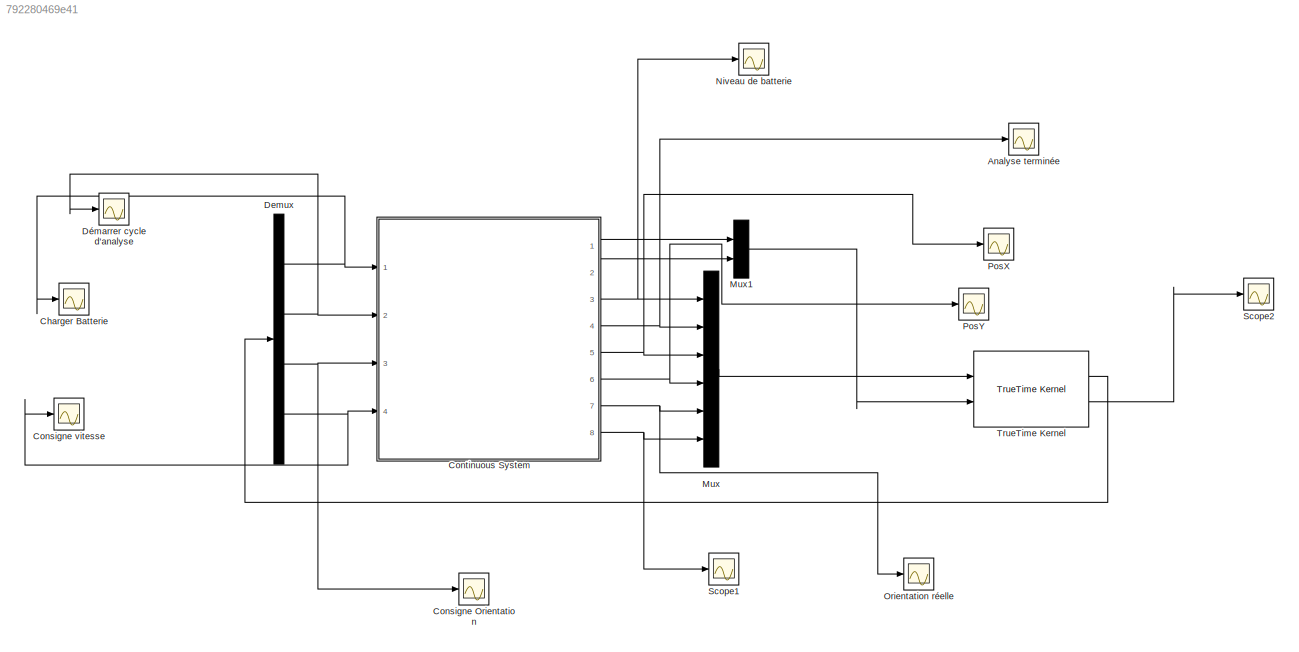
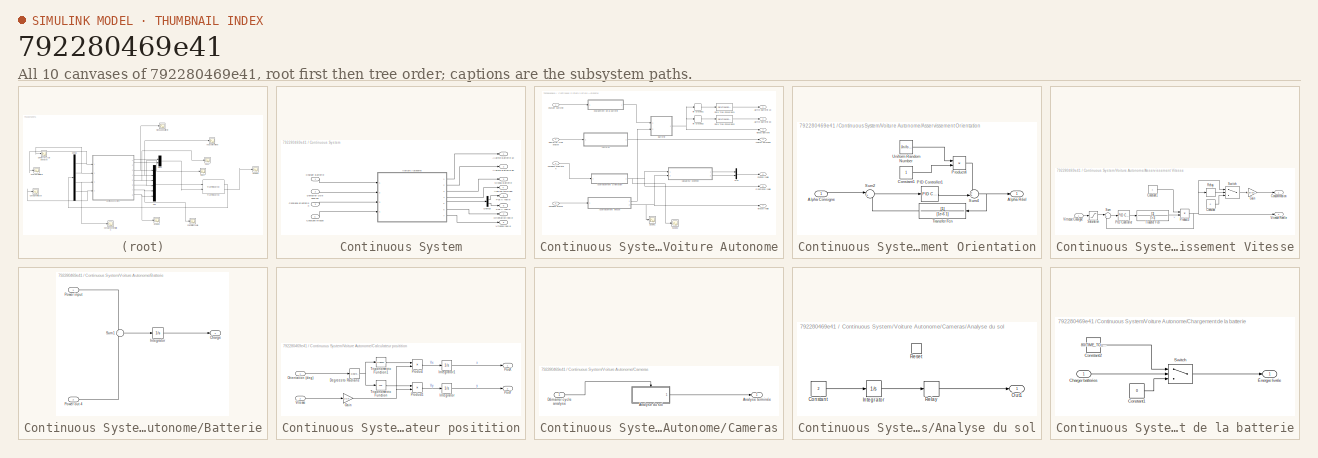
[diagram: thumbnail index - all 10 canvases of the model, root first then tree order]
MODEL slx_792280469e41
KIND model
CONFIG AbsTol = auto
CONFIG EnableMultiTasking = off
CONFIG FixedStep = auto
CONFIG MaxStep = auto
CONFIG MinStep = auto
CONFIG RelTol = 1e-3
CONFIG SampleTimeConstraint = Unconstrained
CONFIG Solver = VariableStepAuto
CONFIG SolverName = VariableStepAuto
CONFIG StartTime = 0.0
CONFIG StopTime = 86400
BLOCK [Scope] Analyse terminée
  Floating = off
  NumInputPorts = 1
  Ports = [1]
  ScopeSpecificationString = Simulink.scopes.TimeScopeBlockCfg('CurrentConfiguration', extmgr.ConfigurationSet(extmgr.Configuration('Core','General UI',true),extmgr.Configuration('Core','Source UI',true),extmgr.Configuration('Sources','WiredSimulink',true,'DataLoggingVariableName','ScopeData2'),extmgr.Configuration('Visuals','Time Domain',true,'SerializedDisplays',{struct('MinYLimReal','-0.125','MaxYLimReal','1.125','YLabelRe...<+1366ch>
BLOCK [Scope] Charger Batterie
  Floating = off
  NumInputPorts = 1
  Ports = [1]
  ScopeSpecificationString = Simulink.scopes.TimeScopeBlockCfg('CurrentConfiguration', extmgr.ConfigurationSet(extmgr.Configuration('Core','General UI',true),extmgr.Configuration('Core','Source UI',true),extmgr.Configuration('Sources','WiredSimulink',true,'DataLoggingVariableName','ScopeData3'),extmgr.Configuration('Visuals','Time Domain',true),extmgr.Configuration('Tools','Plot Navigation',true),extmgr.Configuration('Tools',...<+40ch>
BLOCK [Scope] Consigne Orientation
  Floating = off
  NumInputPorts = 1
  Ports = [1]
  ScopeSpecificationString = Simulink.scopes.TimeScopeBlockCfg('CurrentConfiguration', extmgr.ConfigurationSet(extmgr.Configuration('Core','General UI',true),extmgr.Configuration('Core','Source UI',true),extmgr.Configuration('Sources','WiredSimulink',true,'DataLoggingVariableName','ScopeData4'),extmgr.Configuration('Visuals','Time Domain',true,'SerializedDisplays',{struct('MinYLimReal','-132.286','MaxYLimReal','314.03348','YL...<+1434ch>
BLOCK [Scope] Consigne vitesse
  Floating = off
  NumInputPorts = 1
  Ports = [1]
  ScopeSpecificationString = Simulink.scopes.TimeScopeBlockCfg('CurrentConfiguration', extmgr.ConfigurationSet(extmgr.Configuration('Core','General UI',true),extmgr.Configuration('Core','Source UI',true),extmgr.Configuration('Sources','WiredSimulink',true,'DataLoggingVariableName','ScopeData2'),extmgr.Configuration('Visuals','Time Domain',true,'SerializedDisplays',{struct('MinYLimReal','29.02297','MaxYLimReal','30.39945','YLa...<+1448ch>
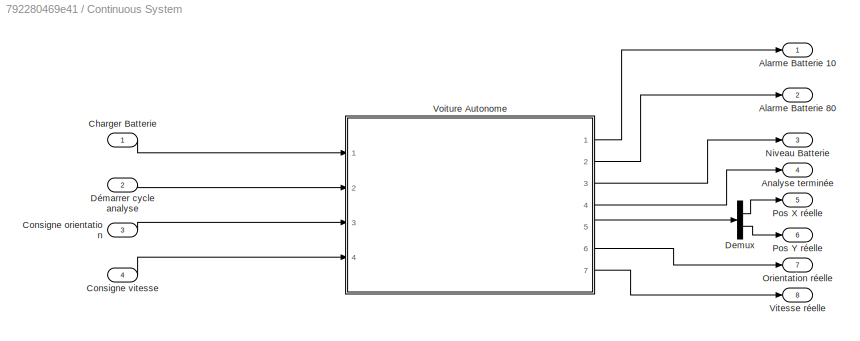
BLOCK [SubSystem] Continuous System
  Ports = [4, 8]
  RequestExecContextInheritance = off
BLOCK [Outport] Continuous System/Alarme Batterie 10
  IconDisplay = Port number
BLOCK [Outport] Continuous System/Alarme Batterie 80
  IconDisplay = Port number
  Port = 2
BLOCK [Outport] Continuous System/Analyse terminée
  IconDisplay = Port number
  Port = 4
BLOCK [Inport] Continuous System/Charger Batterie
  IconDisplay = Port number
BLOCK [Inport] Continuous System/Consigne orientation
  IconDisplay = Port number
  Port = 3
BLOCK [Inport] Continuous System/Consigne vitesse
  IconDisplay = Port number
  Port = 4
BLOCK [Demux] Continuous System/Demux
  DisplayOption = bar
  Outputs = 2
  Ports = [1, 2]
BLOCK [Inport] Continuous System/Démarrer cycle analyse
  IconDisplay = Port number
  Port = 2
BLOCK [Outport] Continuous System/Niveau Batterie
  IconDisplay = Port number
  Port = 3
BLOCK [Outport] Continuous System/Orientation réelle
  IconDisplay = Port number
  Port = 7
BLOCK [Outport] Continuous System/Pos X réelle
  IconDisplay = Port number
  Port = 5
BLOCK [Outport] Continuous System/Pos Y réelle
  IconDisplay = Port number
  Port = 6
BLOCK [Outport] Continuous System/Vitesse réelle
  IconDisplay = Port number
  Port = 8
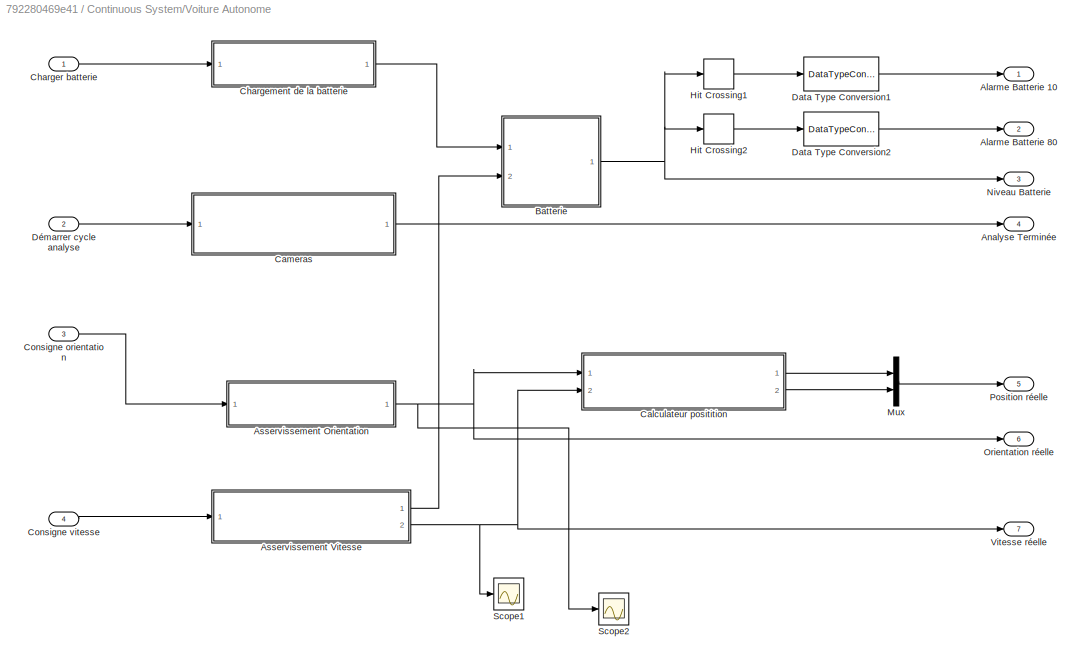
BLOCK [SubSystem] Continuous System/Voiture Autonome
  Ports = [4, 7]
  RequestExecContextInheritance = off
BLOCK [Outport] Continuous System/Voiture Autonome/Alarme Batterie 10
  IconDisplay = Port number
BLOCK [Outport] Continuous System/Voiture Autonome/Alarme Batterie 80
  IconDisplay = Port number
  Port = 2
BLOCK [Outport] Continuous System/Voiture Autonome/Analyse Terminée
  IconDisplay = Port number
  Port = 4
BLOCK [SubSystem] Continuous System/Voiture Autonome/Asservissement Orientation
  Ports = [1, 1]
  RequestExecContextInheritance = off
BLOCK [Inport] Continuous System/Voiture Autonome/Asservissement Orientation/Alpha Consigne
  IconDisplay = Port number
BLOCK [Outport] Continuous System/Voiture Autonome/Asservissement Orientation/Alpha Réel
  IconDisplay = Port number
BLOCK [Constant] Continuous System/Voiture Autonome/Asservissement Orientation/Constant1
BLOCK [Reference] Continuous System/Voiture Autonome/Asservissement Orientation/PID Controller1  REF=simulink/Continuous/PID Controller
  Ports = [1, 1]
  SourceBlock = simulink/Continuous/PID Controller
  SourceProductBaseCode = SL
  SourceProductName = Simulink
  SourceType = PID 1dof
BLOCK [Product] Continuous System/Voiture Autonome/Asservissement Orientation/Product4
  InputSameDT = off
  OutDataTypeStr = Inherit: Inherit via internal rule
  Ports = [2, 1]
  RndMeth = Floor
  SaturateOnIntegerOverflow = off
BLOCK [Sum] Continuous System/Voiture Autonome/Asservissement Orientation/Sum2
  IconShape = round
  InputSameDT = off
  Inputs = |+-
  OutDataTypeStr = Inherit: Inherit via internal rule
  Ports = [2, 1]
  SaturateOnIntegerOverflow = off
BLOCK [Sum] Continuous System/Voiture Autonome/Asservissement Orientation/Sum4
  IconShape = round
  InputSameDT = off
  Inputs = ++|
  OutDataTypeStr = Inherit: Inherit via internal rule
  Ports = [2, 1]
  SaturateOnIntegerOverflow = off
BLOCK [TransferFcn] Continuous System/Voiture Autonome/Asservissement Orientation/Transfer Fcn
  Denominator = [1e-6 1]
BLOCK [UniformRandomNumber] Continuous System/Voiture Autonome/Asservissement Orientation/Uniform Random Number
  SampleTime = 0.1
BLOCK [SubSystem] Continuous System/Voiture Autonome/Asservissement Vitesse
  Ports = [1, 2]
  RequestExecContextInheritance = off
BLOCK [Outport] Continuous System/Voiture Autonome/Asservissement Vitesse/Consommation
  IconDisplay = Port number
BLOCK [Constant] Continuous System/Voiture Autonome/Asservissement Vitesse/Constant
  Value = 0
BLOCK [Constant] Continuous System/Voiture Autonome/Asservissement Vitesse/Constant1
BLOCK [Gain] Continuous System/Voiture Autonome/Asservissement Vitesse/Gain
  Gain = 100/(BAT_AUTONOMY_KM*3600)
  OutDataTypeStr = Inherit: Inherit via internal rule
  ParamDataTypeStr = Inherit: Inherit via internal rule
  SaturateOnIntegerOverflow = off
BLOCK [Reference] Continuous System/Voiture Autonome/Asservissement Vitesse/PID Controller  REF=simulink/Continuous/PID Controller
  Ports = [1, 1]
  SourceBlock = simulink/Continuous/PID Controller
  SourceProductBaseCode = SL
  SourceProductName = Simulink
  SourceType = PID 1dof
BLOCK [Product] Continuous System/Voiture Autonome/Asservissement Vitesse/Product3
  InputSameDT = off
  OutDataTypeStr = Inherit: Inherit via internal rule
  Ports = [2, 1]
  RndMeth = Floor
  SaturateOnIntegerOverflow = off
BLOCK [Relay] Continuous System/Voiture Autonome/Asservissement Vitesse/Relay
  OffSwitchValue = 0.05
  OnSwitchValue = 0.051
BLOCK [Saturate] Continuous System/Voiture Autonome/Asservissement Vitesse/Saturation
  InputPortMap = u0
  LowerLimit = 0
  Ports = [1, 1]
  UpperLimit = VITESSE_MAX_KMH
BLOCK [Sum] Continuous System/Voiture Autonome/Asservissement Vitesse/Sum
  IconShape = round
  InputSameDT = off
  Inputs = |+-
  OutDataTypeStr = Inherit: Inherit via internal rule
  Ports = [2, 1]
  SaturateOnIntegerOverflow = off
BLOCK [Switch] Continuous System/Voiture Autonome/Asservissement Vitesse/Switch
  Criteria = u2 > Threshold
  InputSameDT = off
  SaturateOnIntegerOverflow = off
BLOCK [TransferFcn] Continuous System/Voiture Autonome/Asservissement Vitesse/Transfer Fcn
  Denominator = [5 1]
BLOCK [Outport] Continuous System/Voiture Autonome/Asservissement Vitesse/Vitesse Réelle
  IconDisplay = Port number
  Port = 2
BLOCK [Inport] Continuous System/Voiture Autonome/Asservissement Vitesse/Vittesse Consigne
  IconDisplay = Port number
BLOCK [SubSystem] Continuous System/Voiture Autonome/Batterie
  Ports = [2, 1]
  RequestExecContextInheritance = off
BLOCK [Outport] Continuous System/Voiture Autonome/Batterie/Charge
  IconDisplay = Port number
BLOCK [Integrator] Continuous System/Voiture Autonome/Batterie/Integrator
  InitialCondition = INIT_NIV_BAT
  LimitOutput = on
  LowerSaturationLimit = 0
  Ports = [1, 1]
  UpperSaturationLimit = 100
BLOCK [Inport] Continuous System/Voiture Autonome/Batterie/Power input
  IconDisplay = Port number
BLOCK [Inport] Continuous System/Voiture Autonome/Batterie/Power out 4
  IconDisplay = Port number
  Port = 2
BLOCK [Sum] Continuous System/Voiture Autonome/Batterie/Sum1
  IconShape = round
  InputSameDT = off
  Inputs = +-
  OutDataTypeStr = Inherit: Inherit via internal rule
  Ports = [2, 1]
  SaturateOnIntegerOverflow = off
BLOCK [SubSystem] Continuous System/Voiture Autonome/Calculateur positition
  Ports = [2, 2]
  RequestExecContextInheritance = off
BLOCK [Reference] Continuous System/Voiture Autonome/Calculateur positition/Degrees to Radians  REF=simulink_extras/Transformations/Degrees to
Radians
  Ports = [1, 1]
  SourceBlock = simulink_extras/Transformations/Degrees to\nRadians
  SourceProductBaseCode = SL
  SourceProductName = Simulink
  SourceType = DegreesToRadians
BLOCK [Gain] Continuous System/Voiture Autonome/Calculateur positition/Gain
  Gain = 1/3.6
  OutDataTypeStr = Inherit: Inherit via internal rule
  ParamDataTypeStr = Inherit: Inherit via internal rule
  SaturateOnIntegerOverflow = off
BLOCK [Integrator] Continuous System/Voiture Autonome/Calculateur positition/Integrator
  Ports = [1, 1]
BLOCK [Integrator] Continuous System/Voiture Autonome/Calculateur positition/Integrator1
  Ports = [1, 1]
BLOCK [Inport] Continuous System/Voiture Autonome/Calculateur positition/Orientation (deg)
  IconDisplay = Port number
BLOCK [Outport] Continuous System/Voiture Autonome/Calculateur positition/PosX
  IconDisplay = Port number
BLOCK [Outport] Continuous System/Voiture Autonome/Calculateur positition/PosY
  IconDisplay = Port number
  Port = 2
BLOCK [Product] Continuous System/Voiture Autonome/Calculateur positition/Product
  InputSameDT = off
  OutDataTypeStr = Inherit: Inherit via internal rule
  Ports = [2, 1]
  RndMeth = Floor
  SaturateOnIntegerOverflow = off
BLOCK [Product] Continuous System/Voiture Autonome/Calculateur positition/Product1
  InputSameDT = off
  OutDataTypeStr = Inherit: Inherit via internal rule
  Ports = [2, 1]
  RndMeth = Floor
  SaturateOnIntegerOverflow = off
BLOCK [Trigonometry] Continuous System/Voiture Autonome/Calculateur positition/Trigonometric Function
  Operator = cos
  Ports = [1, 1]
BLOCK [Trigonometry] Continuous System/Voiture Autonome/Calculateur positition/Trigonometric Function1
  Ports = [1, 1]
BLOCK [Inport] Continuous System/Voiture Autonome/Calculateur positition/Vitesse
  IconDisplay = Port number
  Port = 2
BLOCK [SubSystem] Continuous System/Voiture Autonome/Cameras
  Ports = [1, 1]
  RequestExecContextInheritance = off
BLOCK [SubSystem] Continuous System/Voiture Autonome/Cameras/Analyse du sol
  Ports = [0, 1, 0, 0, 0, 0, 0, 0, 1]
  RequestExecContextInheritance = off
  TreatAsAtomicUnit = on
BLOCK [Constant] Continuous System/Voiture Autonome/Cameras/Analyse du sol/Constant
  Value = 2
BLOCK [Integrator] Continuous System/Voiture Autonome/Cameras/Analyse du sol/Integrator
  Ports = [1, 1]
BLOCK [Outport] Continuous System/Voiture Autonome/Cameras/Analyse du sol/Out1
  IconDisplay = Port number
BLOCK [Relay] Continuous System/Voiture Autonome/Cameras/Analyse du sol/Relay
  OffSwitchValue = 0
  OnSwitchValue = 1
BLOCK [ResetPort] Continuous System/Voiture Autonome/Cameras/Analyse du sol/Reset
  DisableCoverage = on
BLOCK [Outport] Continuous System/Voiture Autonome/Cameras/Analyse terminée
  IconDisplay = Port number
BLOCK [Inport] Continuous System/Voiture Autonome/Cameras/Démarrer cycle analyse
  IconDisplay = Port number
BLOCK [SubSystem] Continuous System/Voiture Autonome/Chargement de la batterie
  Ports = [1, 1]
  RequestExecContextInheritance = off
BLOCK [Inport] Continuous System/Voiture Autonome/Chargement de la batterie/Charger batteries
  IconDisplay = Port number
BLOCK [Constant] Continuous System/Voiture Autonome/Chargement de la batterie/Constant1
  Value = 0
BLOCK [Constant] Continuous System/Voiture Autonome/Chargement de la batterie/Constant2
  Value = 80/TIME_TO_CHARGE_S
BLOCK [Switch] Continuous System/Voiture Autonome/Chargement de la batterie/Switch
  Criteria = u2 > Threshold
  InputSameDT = off
  SaturateOnIntegerOverflow = off
BLOCK [Outport] Continuous System/Voiture Autonome/Chargement de la batterie/Énergie livrée
  IconDisplay = Port number
BLOCK [Inport] Continuous System/Voiture Autonome/Charger batterie
  IconDisplay = Port number
BLOCK [Inport] Continuous System/Voiture Autonome/Consigne orientation
  IconDisplay = Port number
  Port = 3
BLOCK [Inport] Continuous System/Voiture Autonome/Consigne vitesse
  IconDisplay = Port number
  Port = 4
BLOCK [DataTypeConversion] Continuous System/Voiture Autonome/Data Type Conversion1
  RndMeth = Floor
  SaturateOnIntegerOverflow = off
BLOCK [DataTypeConversion] Continuous System/Voiture Autonome/Data Type Conversion2
  RndMeth = Floor
  SaturateOnIntegerOverflow = off
BLOCK [Inport] Continuous System/Voiture Autonome/Démarrer cycle analyse
  IconDisplay = Port number
  Port = 2
BLOCK [HitCross] Continuous System/Voiture Autonome/Hit Crossing1
  HitCrossingDirection = falling
  HitCrossingOffset = 10
  Ports = [1, 1]
BLOCK [HitCross] Continuous System/Voiture Autonome/Hit Crossing2
  HitCrossingDirection = rising
  HitCrossingOffset = 80
  Ports = [1, 1]
BLOCK [Mux] Continuous System/Voiture Autonome/Mux
  DisplayOption = bar
  Inputs = 2
  Ports = [2, 1]
BLOCK [Outport] Continuous System/Voiture Autonome/Niveau Batterie
  IconDisplay = Port number
  Port = 3
BLOCK [Outport] Continuous System/Voiture Autonome/Orientation réelle
  IconDisplay = Port number
  Port = 6
BLOCK [Outport] Continuous System/Voiture Autonome/Position réelle
  IconDisplay = Port number
  Port = 5
BLOCK [Scope] Continuous System/Voiture Autonome/Scope1
  Floating = off
  NumInputPorts = 1
  Ports = [1]
  ScopeSpecificationString = Simulink.scopes.TimeScopeBlockCfg('CurrentConfiguration', extmgr.ConfigurationSet(extmgr.Configuration('Core','General UI',true),extmgr.Configuration('Core','Source UI',true),extmgr.Configuration('Sources','WiredSimulink',true,'DataLoggingVariableName','ScopeData1'),extmgr.Configuration('Visuals','Time Domain',true,'SerializedDisplays',{struct('MinYLimReal','47.96539','MaxYLimReal','52.15002','YLa...<+1463ch>
BLOCK [Scope] Continuous System/Voiture Autonome/Scope2
  Floating = off
  NumInputPorts = 1
  Ports = [1]
  ScopeSpecificationString = Simulink.scopes.TimeScopeBlockCfg('CurrentConfiguration', extmgr.ConfigurationSet(extmgr.Configuration('Core','General UI',true),extmgr.Configuration('Core','Source UI',true),extmgr.Configuration('Sources','WiredSimulink',true,'DataLoggingVariableName','ScopeData3'),extmgr.Configuration('Visuals','Time Domain',true,'SerializedDisplays',{struct('MinYLimReal','-12.44677','MaxYLimReal','102.44576','Y...<+1466ch>
BLOCK [Outport] Continuous System/Voiture Autonome/Vitesse réelle
  IconDisplay = Port number
  Port = 7
BLOCK [Demux] Demux
  DisplayOption = bar
  Ports = [1, 4]
BLOCK [Scope] Démarrer cycle d'analyse
  Floating = off
  NumInputPorts = 1
  Ports = [1]
  ScopeSpecificationString = Simulink.scopes.TimeScopeBlockCfg('CurrentConfiguration', extmgr.ConfigurationSet(extmgr.Configuration('Core','General UI',true),extmgr.Configuration('Core','Source UI',true),extmgr.Configuration('Sources','WiredSimulink',true,'DataLoggingVariableName','ScopeData5'),extmgr.Configuration('Visuals','Time Domain',true,'SerializedDisplays',{struct('MinYLimReal','-0.125','MaxYLimReal','1.125','YLabelRe...<+1413ch>
BLOCK [Mux] Mux
  DisplayOption = bar
  Inputs = 6
  Ports = [6, 1]
BLOCK [Mux] Mux1
  DisplayOption = bar
  Inputs = 2
  Ports = [2, 1]
BLOCK [Scope] Niveau de batterie
  Floating = off
  NumInputPorts = 1
  Ports = [1]
  ScopeSpecificationString = Simulink.scopes.TimeScopeBlockCfg('CurrentConfiguration', extmgr.ConfigurationSet(extmgr.Configuration('Core','General UI',true),extmgr.Configuration('Core','Source UI',true),extmgr.Configuration('Sources','WiredSimulink',true,'DataLoggingVariableName','ScopeData1'),extmgr.Configuration('Visuals','Time Domain',true,'SerializedDisplays',{struct('MinYLimReal','-1.27258','MaxYLimReal','111.25251','YL...<+1488ch>
BLOCK [Scope] Orientation réelle
  Floating = off
  NumInputPorts = 1
  Ports = [1]
  ScopeSpecificationString = Simulink.scopes.TimeScopeBlockCfg('CurrentConfiguration', extmgr.ConfigurationSet(extmgr.Configuration('Core','General UI',true),extmgr.Configuration('Core','Source UI',true),extmgr.Configuration('Sources','WiredSimulink',true,'DataLoggingVariableName','ScopeData4'),extmgr.Configuration('Visuals','Time Domain',true,'SerializedDisplays',{struct('MinYLimReal','-1289.38168','MaxYLimReal','1488.12022'...<+1426ch>
BLOCK [Scope] PosX
  Floating = off
  NumInputPorts = 1
  Ports = [1]
  ScopeSpecificationString = Simulink.scopes.TimeScopeBlockCfg('CurrentConfiguration', extmgr.ConfigurationSet(extmgr.Configuration('Core','General UI',true),extmgr.Configuration('Core','Source UI',true),extmgr.Configuration('Sources','WiredSimulink',true,'DataLoggingVariableName','ScopeData3'),extmgr.Configuration('Visuals','Time Domain',true,'SerializedDisplays',{struct('MinYLimReal','-4848.17679','MaxYLimReal','43633.59113...<+1404ch>
BLOCK [Scope] PosY
  Floating = off
  NumInputPorts = 1
  Ports = [1]
  ScopeSpecificationString = Simulink.scopes.TimeScopeBlockCfg('CurrentConfiguration', extmgr.ConfigurationSet(extmgr.Configuration('Core','General UI',true),extmgr.Configuration('Core','Source UI',true),extmgr.Configuration('Sources','WiredSimulink',true,'DataLoggingVariableName','ScopeData1'),extmgr.Configuration('Visuals','Time Domain',true),extmgr.Configuration('Tools','Plot Navigation',true),extmgr.Configuration('Tools',...<+40ch>
BLOCK [Scope] Scope1
  Floating = off
  NumInputPorts = 1
  Ports = [1]
  ScopeSpecificationString = Simulink.scopes.TimeScopeBlockCfg('CurrentConfiguration', extmgr.ConfigurationSet(extmgr.Configuration('Core','General UI',true),extmgr.Configuration('Core','Source UI',true),extmgr.Configuration('Sources','WiredSimulink',true,'DataLoggingVariableName','ScopeData1'),extmgr.Configuration('Visuals','Time Domain',true,'SerializedDisplays',{struct('MinYLimReal','-7.25203','MaxYLimReal','57.2521','YLab...<+1434ch>
BLOCK [Scope] Scope2
  Floating = off
  NumInputPorts = 1
  Ports = [1]
  ScopeSpecificationString = Simulink.scopes.TimeScopeBlockCfg('CurrentConfiguration', extmgr.ConfigurationSet(extmgr.Configuration('Core','General UI',true),extmgr.Configuration('Core','Source UI',true),extmgr.Configuration('Sources','WiredSimulink',true,'DataLoggingVariableName','ScopeData1'),extmgr.Configuration('Visuals','Time Domain',true,'SerializedDisplays',{struct('MinYLimReal','0.375','MaxYLimReal','6.625','YLabelRea...<+1594ch>
BLOCK [Reference] TrueTime Kernel  REF=truetime/TrueTime Kernel  (lib defined in slx_0362a698a4ec)
  Ports = [2, 2]
  SourceBlock = truetime/TrueTime Kernel
LINE Continuous System/Charger Batterie:1 -> Continuous System/Voiture Autonome:1
LINE Continuous System/Consigne orientation:1 -> Continuous System/Voiture Autonome:3
LINE Continuous System/Consigne vitesse:1 -> Continuous System/Voiture Autonome:4
LINE Continuous System/Demux:1 -> Continuous System/Pos X réelle:1
LINE Continuous System/Demux:2 -> Continuous System/Pos Y réelle:1
LINE Continuous System/Démarrer cycle analyse:1 -> Continuous System/Voiture Autonome:2
LINE Continuous System/Voiture Autonome/Asservissement Orientation/Alpha Consigne:1 -> Continuous System/Voiture Autonome/Asservissement Orientation/Sum2:1
LINE Continuous System/Voiture Autonome/Asservissement Orientation/Constant1:1 -> Continuous System/Voiture Autonome/Asservissement Orientation/Product4:2
LINE Continuous System/Voiture Autonome/Asservissement Orientation/PID Controller1:1 -> Continuous System/Voiture Autonome/Asservissement Orientation/Sum4:2
LINE Continuous System/Voiture Autonome/Asservissement Orientation/Product4:1 -> Continuous System/Voiture Autonome/Asservissement Orientation/Sum4:1
LINE Continuous System/Voiture Autonome/Asservissement Orientation/Sum2:1 -> Continuous System/Voiture Autonome/Asservissement Orientation/PID Controller1:1
NET Continuous System/Voiture Autonome/Asservissement Orientation/Sum4:1 -> Continuous System/Voiture Autonome/Asservissement Orientation/Alpha Réel:1, Continuous System/Voiture Autonome/Asservissement Orientation/Transfer Fcn:1
LINE Continuous System/Voiture Autonome/Asservissement Orientation/Transfer Fcn:1 -> Continuous System/Voiture Autonome/Asservissement Orientation/Sum2:2
LINE Continuous System/Voiture Autonome/Asservissement Orientation/Uniform Random Number:1 -> Continuous System/Voiture Autonome/Asservissement Orientation/Product4:1
NET Continuous System/Voiture Autonome/Asservissement Orientation:1 -> Continuous System/Voiture Autonome/Calculateur positition:1, Continuous System/Voiture Autonome/Orientation réelle:1, Continuous System/Voiture Autonome/Scope2:1
LINE Continuous System/Voiture Autonome/Asservissement Vitesse/Constant1:1 -> Continuous System/Voiture Autonome/Asservissement Vitesse/Product3:1
LINE Continuous System/Voiture Autonome/Asservissement Vitesse/Constant:1 -> Continuous System/Voiture Autonome/Asservissement Vitesse/Switch:3
LINE Continuous System/Voiture Autonome/Asservissement Vitesse/Gain:1 -> Continuous System/Voiture Autonome/Asservissement Vitesse/Consommation:1
LINE Continuous System/Voiture Autonome/Asservissement Vitesse/PID Controller:1 -> Continuous System/Voiture Autonome/Asservissement Vitesse/Transfer Fcn:1
NET Continuous System/Voiture Autonome/Asservissement Vitesse/Product3:1 -> Continuous System/Voiture Autonome/Asservissement Vitesse/Relay:1, Continuous System/Voiture Autonome/Asservissement Vitesse/Sum:2, Continuous System/Voiture Autonome/Asservissement Vitesse/Switch:1, Continuous System/Voiture Autonome/Asservissement Vitesse/Vitesse Réelle:1
LINE Continuous System/Voiture Autonome/Asservissement Vitesse/Relay:1 -> Continuous System/Voiture Autonome/Asservissement Vitesse/Switch:2
LINE Continuous System/Voiture Autonome/Asservissement Vitesse/Saturation:1 -> Continuous System/Voiture Autonome/Asservissement Vitesse/Sum:1
LINE Continuous System/Voiture Autonome/Asservissement Vitesse/Sum:1 -> Continuous System/Voiture Autonome/Asservissement Vitesse/PID Controller:1
LINE Continuous System/Voiture Autonome/Asservissement Vitesse/Switch:1 -> Continuous System/Voiture Autonome/Asservissement Vitesse/Gain:1
LINE Continuous System/Voiture Autonome/Asservissement Vitesse/Transfer Fcn:1 -> Continuous System/Voiture Autonome/Asservissement Vitesse/Product3:2
LINE Continuous System/Voiture Autonome/Asservissement Vitesse/Vittesse Consigne:1 -> Continuous System/Voiture Autonome/Asservissement Vitesse/Saturation:1
LINE Continuous System/Voiture Autonome/Asservissement Vitesse:1 -> Continuous System/Voiture Autonome/Batterie:2
NET Continuous System/Voiture Autonome/Asservissement Vitesse:2 -> Continuous System/Voiture Autonome/Calculateur positition:2, Continuous System/Voiture Autonome/Scope1:1, Continuous System/Voiture Autonome/Vitesse réelle:1
LINE Continuous System/Voiture Autonome/Batterie/Integrator:1 -> Continuous System/Voiture Autonome/Batterie/Charge:1
LINE Continuous System/Voiture Autonome/Batterie/Power input:1 -> Continuous System/Voiture Autonome/Batterie/Sum1:1
LINE Continuous System/Voiture Autonome/Batterie/Power out 4:1 -> Continuous System/Voiture Autonome/Batterie/Sum1:2
LINE Continuous System/Voiture Autonome/Batterie/Sum1:1 -> Continuous System/Voiture Autonome/Batterie/Integrator:1
NET Continuous System/Voiture Autonome/Batterie:1 -> Continuous System/Voiture Autonome/Hit Crossing1:1, Continuous System/Voiture Autonome/Hit Crossing2:1, Continuous System/Voiture Autonome/Niveau Batterie:1
NET Continuous System/Voiture Autonome/Calculateur positition/Degrees to Radians:1 -> Continuous System/Voiture Autonome/Calculateur positition/Trigonometric Function1:1, Continuous System/Voiture Autonome/Calculateur positition/Trigonometric Function:1
NET Continuous System/Voiture Autonome/Calculateur positition/Gain:1 -> Continuous System/Voiture Autonome/Calculateur positition/Product1:2, Continuous System/Voiture Autonome/Calculateur positition/Product:2
LINE Continuous System/Voiture Autonome/Calculateur positition/Integrator1:1 -> Continuous System/Voiture Autonome/Calculateur positition/PosX:1
LINE Continuous System/Voiture Autonome/Calculateur positition/Integrator:1 -> Continuous System/Voiture Autonome/Calculateur positition/PosY:1
LINE Continuous System/Voiture Autonome/Calculateur positition/Orientation (deg):1 -> Continuous System/Voiture Autonome/Calculateur positition/Degrees to Radians:1
LINE Continuous System/Voiture Autonome/Calculateur positition/Product1:1 -> Continuous System/Voiture Autonome/Calculateur positition/Integrator:1
LINE Continuous System/Voiture Autonome/Calculateur positition/Product:1 -> Continuous System/Voiture Autonome/Calculateur positition/Integrator1:1
LINE Continuous System/Voiture Autonome/Calculateur positition/Trigonometric Function1:1 -> Continuous System/Voiture Autonome/Calculateur positition/Product:1
LINE Continuous System/Voiture Autonome/Calculateur positition/Trigonometric Function:1 -> Continuous System/Voiture Autonome/Calculateur positition/Product1:1
LINE Continuous System/Voiture Autonome/Calculateur positition/Vitesse:1 -> Continuous System/Voiture Autonome/Calculateur positition/Gain:1
LINE Continuous System/Voiture Autonome/Calculateur positition:1 -> Continuous System/Voiture Autonome/Mux:1
LINE Continuous System/Voiture Autonome/Calculateur positition:2 -> Continuous System/Voiture Autonome/Mux:2
LINE Continuous System/Voiture Autonome/Cameras/Analyse du sol/Constant:1 -> Continuous System/Voiture Autonome/Cameras/Analyse du sol/Integrator:1
LINE Continuous System/Voiture Autonome/Cameras/Analyse du sol/Integrator:1 -> Continuous System/Voiture Autonome/Cameras/Analyse du sol/Relay:1
LINE Continuous System/Voiture Autonome/Cameras/Analyse du sol/Relay:1 -> Continuous System/Voiture Autonome/Cameras/Analyse du sol/Out1:1
LINE Continuous System/Voiture Autonome/Cameras/Analyse du sol:1 -> Continuous System/Voiture Autonome/Cameras/Analyse terminée:1
LINE Continuous System/Voiture Autonome/Cameras/Démarrer cycle analyse:1 -> Continuous System/Voiture Autonome/Cameras/Analyse du sol:Reset
LINE Continuous System/Voiture Autonome/Cameras:1 -> Continuous System/Voiture Autonome/Analyse Terminée:1
LINE Continuous System/Voiture Autonome/Chargement de la batterie/Charger batteries:1 -> Continuous System/Voiture Autonome/Chargement de la batterie/Switch:2
LINE Continuous System/Voiture Autonome/Chargement de la batterie/Constant1:1 -> Continuous System/Voiture Autonome/Chargement de la batterie/Switch:3
LINE Continuous System/Voiture Autonome/Chargement de la batterie/Constant2:1 -> Continuous System/Voiture Autonome/Chargement de la batterie/Switch:1
LINE Continuous System/Voiture Autonome/Chargement de la batterie/Switch:1 -> Continuous System/Voiture Autonome/Chargement de la batterie/Énergie livrée:1
LINE Continuous System/Voiture Autonome/Chargement de la batterie:1 -> Continuous System/Voiture Autonome/Batterie:1
LINE Continuous System/Voiture Autonome/Charger batterie:1 -> Continuous System/Voiture Autonome/Chargement de la batterie:1
LINE Continuous System/Voiture Autonome/Consigne orientation:1 -> Continuous System/Voiture Autonome/Asservissement Orientation:1
LINE Continuous System/Voiture Autonome/Consigne vitesse:1 -> Continuous System/Voiture Autonome/Asservissement Vitesse:1
LINE Continuous System/Voiture Autonome/Data Type Conversion1:1 -> Continuous System/Voiture Autonome/Alarme Batterie 10:1
LINE Continuous System/Voiture Autonome/Data Type Conversion2:1 -> Continuous System/Voiture Autonome/Alarme Batterie 80:1
LINE Continuous System/Voiture Autonome/Démarrer cycle analyse:1 -> Continuous System/Voiture Autonome/Cameras:1
LINE Continuous System/Voiture Autonome/Hit Crossing1:1 -> Continuous System/Voiture Autonome/Data Type Conversion1:1
LINE Continuous System/Voiture Autonome/Hit Crossing2:1 -> Continuous System/Voiture Autonome/Data Type Conversion2:1
LINE Continuous System/Voiture Autonome/Mux:1 -> Continuous System/Voiture Autonome/Position réelle:1
LINE Continuous System/Voiture Autonome:1 -> Continuous System/Alarme Batterie 10:1
LINE Continuous System/Voiture Autonome:2 -> Continuous System/Alarme Batterie 80:1
LINE Continuous System/Voiture Autonome:3 -> Continuous System/Niveau Batterie:1
LINE Continuous System/Voiture Autonome:4 -> Continuous System/Analyse terminée:1
LINE Continuous System/Voiture Autonome:5 -> Continuous System/Demux:1
LINE Continuous System/Voiture Autonome:6 -> Continuous System/Orientation réelle:1
LINE Continuous System/Voiture Autonome:7 -> Continuous System/Vitesse réelle:1
LINE Continuous System:1 -> Mux1:1
LINE Continuous System:2 -> Mux1:2
NET Continuous System:3 -> Mux:1, Niveau de batterie:1
NET Continuous System:4 -> Analyse terminée:1, Mux:2
NET Continuous System:5 -> Mux:3, PosX:1
NET Continuous System:6 -> Mux:4, PosY:1
NET Continuous System:7 -> Mux:5, Orientation réelle:1
NET Continuous System:8 -> Mux:6, Scope1:1
NET Demux:1 -> Charger Batterie:1, Continuous System:1
NET Demux:2 -> Continuous System:2, Démarrer cycle d'analyse:1
NET Demux:3 -> Consigne Orientation:1, Continuous System:3
NET Demux:4 -> Consigne vitesse:1, Continuous System:4
LINE Mux1:1 -> TrueTime Kernel:2
LINE Mux:1 -> TrueTime Kernel:1
LINE TrueTime Kernel:1 -> Demux:1
LINE TrueTime Kernel:2 -> Scope2:1
note: NET lines group one-source signal fan-out (src -> all destinations, sorted); 1:1 wires keep LINE
